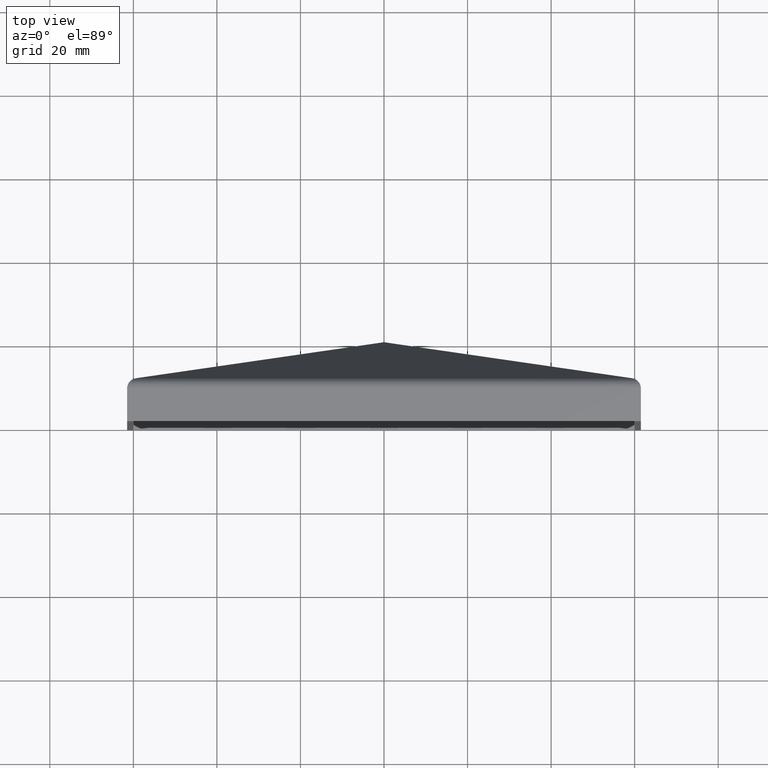
[diagram: clean part render]
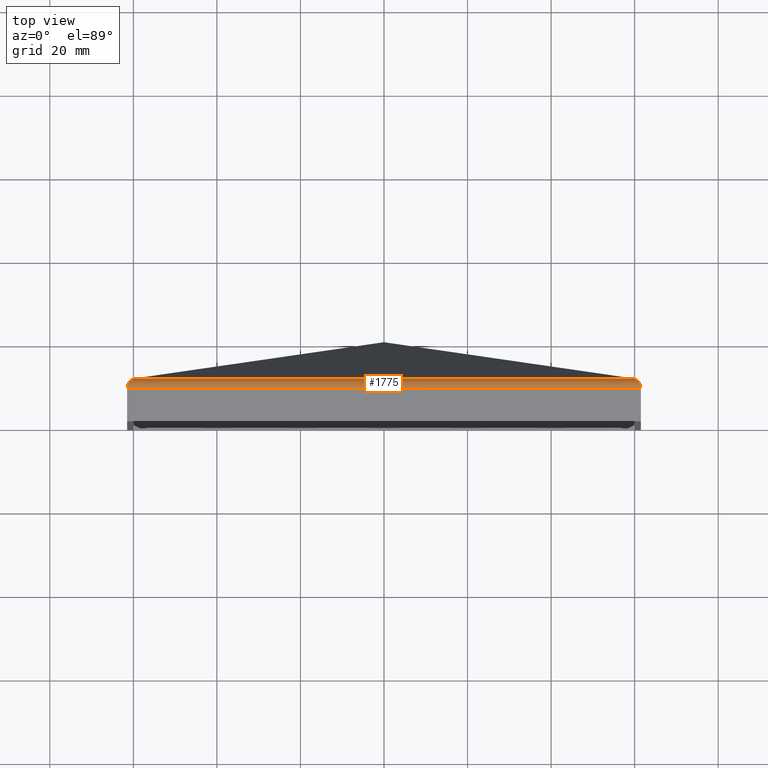
[diagram: same view with one face highlighted and labeled with its STEP entity id]
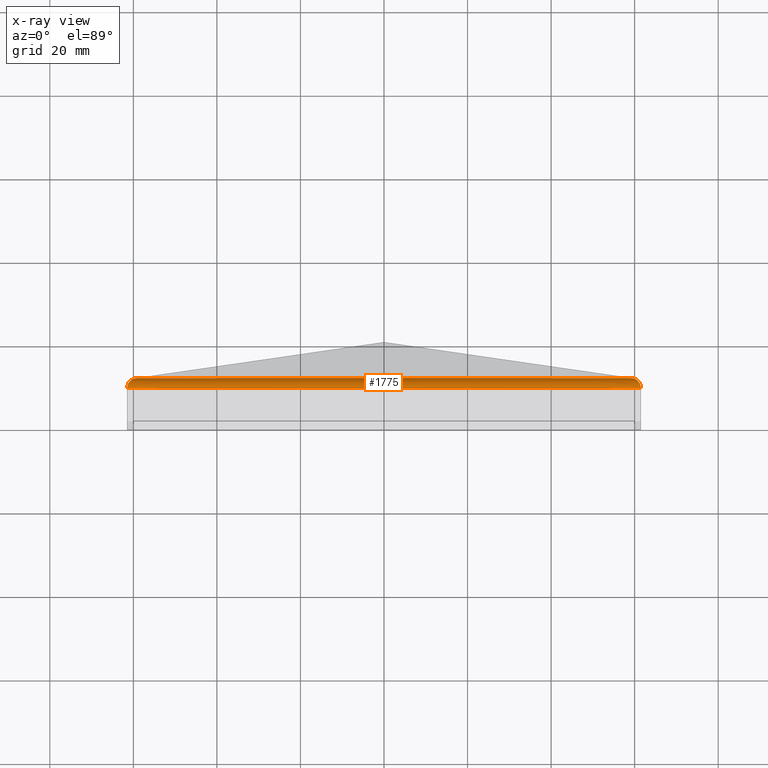
[diagram: x-ray of the same camera — body ghosted, the highlighted face saturated]
A machine part, top view. The second image highlights one B-rep face of the part: STEP entity #1775.
The next image is the same camera in x-ray: the body ghosted, the highlighted face saturated — about 0% of this face is hidden behind the body in this view.
In plain terms, the highlighted cylindrical surface (edge-blend (fillet) strip) has radius 2.5 mm, axis along (1, -0, -0).
Its self-contained STEP definition (entity closure, byte-faithful):
#637 = DIRECTION ( 'NONE',  ( 1.000000000000000000, -0.0000000000000000000, -4.440892098500625700E-016 ) ) ;
#798 = CARTESIAN_POINT ( 'NONE',  ( 61.50000000000010700, 9.157403952029143900, 61.50000000000010700 ) ) ;
#855 = EDGE_CURVE ( 'NONE', #2058, #4958, #949, .T. ) ;
#949 = LINE ( 'NONE', #10926, #1585 ) ;
#1060 = ORIENTED_EDGE ( 'NONE', *, *, #2005, .T. ) ;
#1113 = DIRECTION ( 'NONE',  ( 1.000000000000000000, -0.0000000000000000000, -4.440892098500625700E-016 ) ) ;
#1226 = CARTESIAN_POINT ( 'NONE',  ( -59.40128584298540200, 10.34129916447486700, 59.40128584298489000 ) ) ;
#1585 = VECTOR ( 'NONE', #637, 1000.000000000000000 ) ;
#1775 = ADVANCED_FACE ( 'NONE', ( #7581 ), #10334, .T. ) ;
#2005 = EDGE_CURVE ( 'NONE', #10263, #2814, #9836, .T. ) ;
#2058 = VERTEX_POINT ( 'NONE', #1226 ) ;
#2325 =( BOUNDED_CURVE ( )  B_SPLINE_CURVE ( 3, ( #5042, #6032, #4131, #12315 ),
 .UNSPECIFIED., .F., .F. ) 
 B_SPLINE_CURVE_WITH_KNOTS ( ( 4, 4 ),
 ( 4.873600705237008100, 6.283185307179586200 ),
 .UNSPECIFIED. ) 
 CURVE ( )  GEOMETRIC_REPRESENTATION_ITEM ( )  RATIONAL_B_SPLINE_CURVE ( ( 1.000000000000000000, 0.8411640875536822200, 0.8411640875536822200, 1.000000000000000000 ) ) 
 REPRESENTATION_ITEM ( '' )  );
#2381 = EDGE_CURVE ( 'NONE', #2058, #10263, #2325, .T. ) ;
#2723 = CARTESIAN_POINT ( 'NONE',  ( 61.50000000000014200, 7.873715392397326000, 61.49999999999998600 ) ) ;
#2798 = CARTESIAN_POINT ( 'NONE',  ( 61.50000000000014200, 7.873715392397326000, 61.49999999999998600 ) ) ;
#2814 = VERTEX_POINT ( 'NONE', #2723 ) ;
#2888 = CARTESIAN_POINT ( 'NONE',  ( 59.40128584298547300, 10.34129916447486700, 59.40128584298483400 ) ) ;
#3054 = CARTESIAN_POINT ( 'NONE',  ( -61.50000000000011400, 7.873715392397326000, 61.50000000000004300 ) ) ;
#3864 = CARTESIAN_POINT ( 'NONE',  ( 60.66832946624468500, 10.13524874616193800, 60.66832946624468500 ) ) ;
#4131 = CARTESIAN_POINT ( 'NONE',  ( -61.50000000000008500, 9.157403952029154600, 61.50000000000015600 ) ) ;
#4253 =( BOUNDED_CURVE ( )  B_SPLINE_CURVE ( 3, ( #2798, #798, #3864, #2888 ),
 .UNSPECIFIED., .F., .T. ) 
 B_SPLINE_CURVE_WITH_KNOTS ( ( 4, 4 ),
 ( 0.0000000000000000000, 1.409584601942568400 ),
 .UNSPECIFIED. ) 
 CURVE ( )  GEOMETRIC_REPRESENTATION_ITEM ( )  RATIONAL_B_SPLINE_CURVE ( ( 1.000000000000000000, 0.8411640875536843300, 0.8411640875536843300, 1.000000000000000000 ) ) 
 REPRESENTATION_ITEM ( '' )  );
#4958 = VERTEX_POINT ( 'NONE', #8200 ) ;
#5042 = CARTESIAN_POINT ( 'NONE',  ( -59.40128584298540200, 10.34129916447486700, 59.40128584298489000 ) ) ;
#5275 = EDGE_CURVE ( 'NONE', #2814, #4958, #4253, .T. ) ;
#6032 = CARTESIAN_POINT ( 'NONE',  ( -60.66832946624467800, 10.13524874616194700, 60.66832946624474200 ) ) ;
#6185 = CARTESIAN_POINT ( 'NONE',  ( -61.50000000000011400, 7.873715392397326000, 59.00000000000004300 ) ) ;
#7580 = AXIS2_PLACEMENT_3D ( 'NONE', #6185, #1113, #10342 ) ;
#7581 = FACE_OUTER_BOUND ( 'NONE', #11842, .T. ) ;
#7704 = CARTESIAN_POINT ( 'NONE',  ( -61.50000000000011400, 7.873715392397326000, 61.50000000000004300 ) ) ;
#8050 = VECTOR ( 'NONE', #8052, 1000.000000000000000 ) ;
#8052 = DIRECTION ( 'NONE',  ( 1.000000000000000000, -0.0000000000000000000, -4.440892098500625700E-016 ) ) ;
#8200 = CARTESIAN_POINT ( 'NONE',  ( 59.40128584298547300, 10.34129916447486700, 59.40128584298483400 ) ) ;
#9836 = LINE ( 'NONE', #3054, #8050 ) ;
#10263 = VERTEX_POINT ( 'NONE', #7704 ) ;
#10334 = CYLINDRICAL_SURFACE ( 'NONE', #7580, 2.500000000000099500 ) ;
#10342 = DIRECTION ( 'NONE',  ( 0.0000000000000000000, 0.0000000000000000000, -1.000000000000000000 ) ) ;
#10926 = CARTESIAN_POINT ( 'NONE',  ( -61.50000000000011400, 10.34129916447486700, 59.40128584298489000 ) ) ;
#11240 = ORIENTED_EDGE ( 'NONE', *, *, #2381, .T. ) ;
#11842 = EDGE_LOOP ( 'NONE', ( #11240, #1060, #12545, #12840 ) ) ;
#12315 = CARTESIAN_POINT ( 'NONE',  ( -61.50000000000011400, 7.873715392397326000, 61.50000000000004300 ) ) ;
#12545 = ORIENTED_EDGE ( 'NONE', *, *, #5275, .T. ) ;
#12840 = ORIENTED_EDGE ( 'NONE', *, *, #855, .F. ) ;